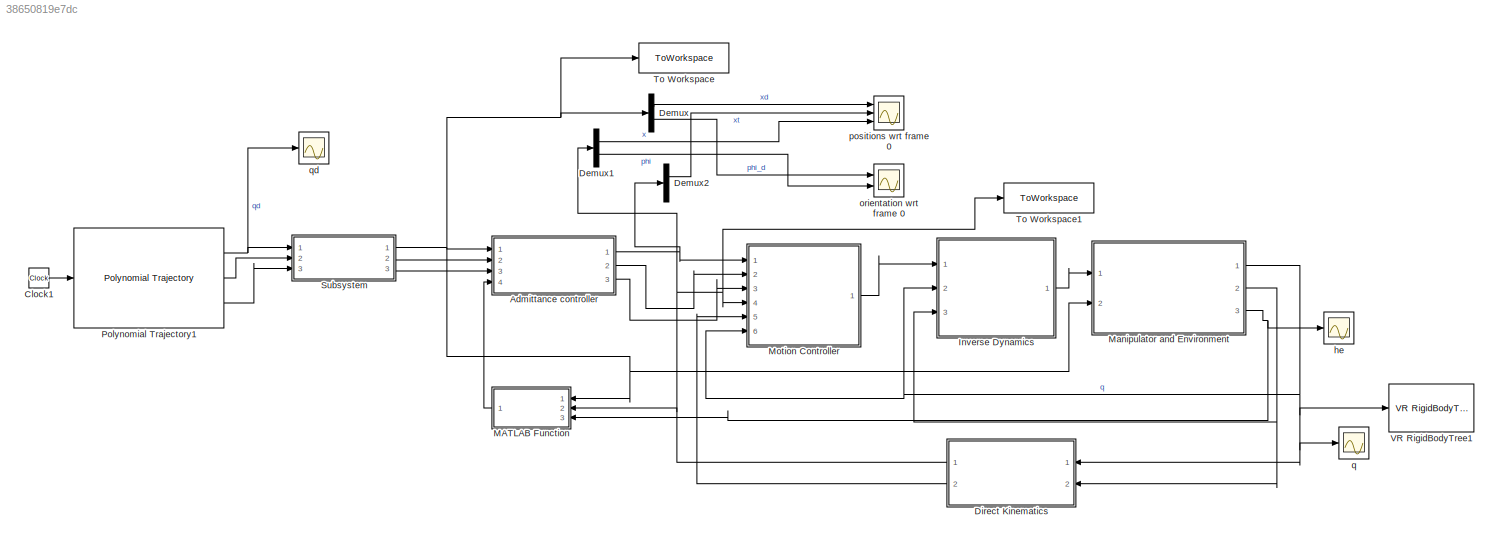
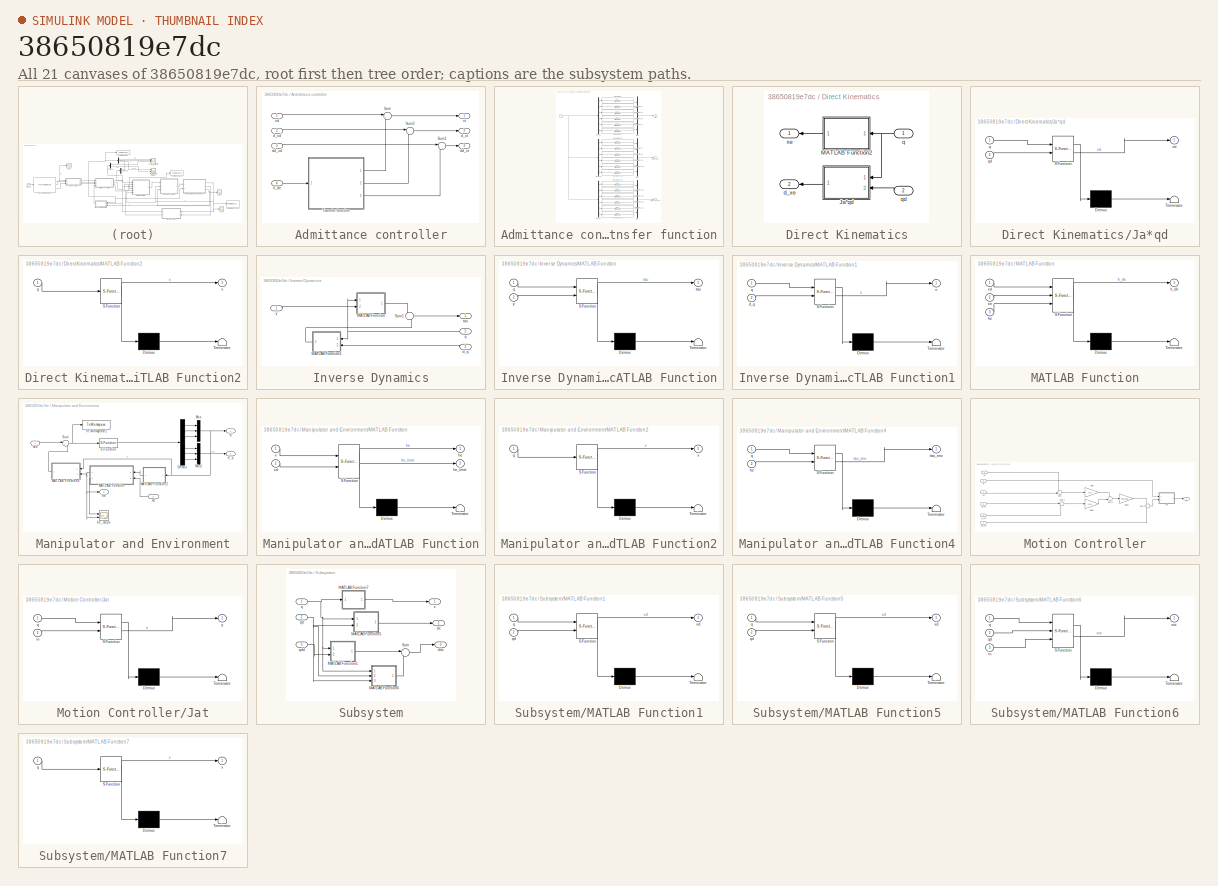
[diagram: thumbnail index - all 21 canvases of the model, root first then tree order]
MODEL slx_38650819e7dc
KIND model
CONFIG AbsTol = auto
CONFIG EnableMultiTasking = off
CONFIG FixedStep = 0.001
CONFIG MaxStep = auto
CONFIG MinStep = auto
CONFIG RelTol = 1e-3
CONFIG SampleTimeConstraint = Unconstrained
CONFIG SolverName = FixedStepAuto
CONFIG StartTime = 0.0
CONFIG StopTime = 5
BLOCK [SubSystem] Admittance controller
  Ports = [4, 3]
  RequestExecContextInheritance = off
BLOCK [Sum] Admittance controller/Sum
  Inputs = |+-
  Ports = [2, 1]
BLOCK [Sum] Admittance controller/Sum1
  Inputs = |+-
  Ports = [2, 1]
BLOCK [Sum] Admittance controller/Sum3
  Inputs = |+-
  Ports = [2, 1]
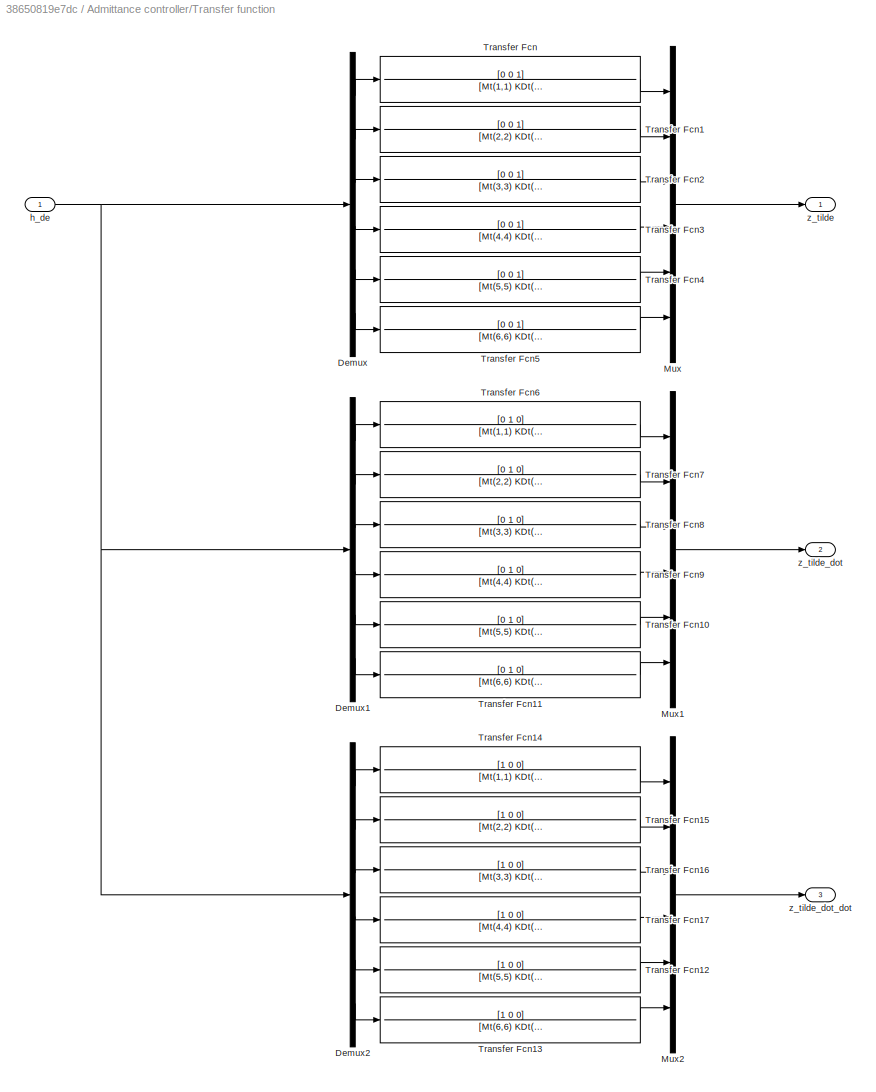
BLOCK [SubSystem] Admittance controller/Transfer function
  Ports = [1, 3]
  RequestExecContextInheritance = off
BLOCK [Demux] Admittance controller/Transfer function/Demux
  Outputs = 6
  Ports = [1, 6]
BLOCK [Demux] Admittance controller/Transfer function/Demux1
  Outputs = 6
  Ports = [1, 6]
BLOCK [Demux] Admittance controller/Transfer function/Demux2
  Outputs = 6
  Ports = [1, 6]
BLOCK [Mux] Admittance controller/Transfer function/Mux
  DisplayOption = bar
  Inputs = 6
  Ports = [6, 1]
BLOCK [Mux] Admittance controller/Transfer function/Mux1
  DisplayOption = bar
  Inputs = 6
  Ports = [6, 1]
BLOCK [Mux] Admittance controller/Transfer function/Mux2
  DisplayOption = bar
  Inputs = 6
  Ports = [6, 1]
BLOCK [TransferFcn] Admittance controller/Transfer function/Transfer Fcn
  Denominator = [Mt(1,1) KDt(1,1) KPt(1,1)]
  Numerator = [0 0 1]
BLOCK [TransferFcn] Admittance controller/Transfer function/Transfer Fcn1
  Denominator = [Mt(2,2) KDt(2,2) KPt(2,2)]
  Numerator = [0 0 1]
BLOCK [TransferFcn] Admittance controller/Transfer function/Transfer Fcn10
  Denominator = [Mt(5,5) KDt(5,5) KPt(5,5)]
  Numerator = [0 1 0]
BLOCK [TransferFcn] Admittance controller/Transfer function/Transfer Fcn11
  Denominator = [Mt(6,6) KDt(6,6) KPt(6,6)]
  Numerator = [0 1 0]
BLOCK [TransferFcn] Admittance controller/Transfer function/Transfer Fcn12
  Denominator = [Mt(5,5) KDt(5,5) KPt(5,5)]
  Numerator = [1 0 0]
BLOCK [TransferFcn] Admittance controller/Transfer function/Transfer Fcn13
  Denominator = [Mt(6,6) KDt(6,6) KPt(6,6)]
  Numerator = [1 0 0]
BLOCK [TransferFcn] Admittance controller/Transfer function/Transfer Fcn14
  Denominator = [Mt(1,1) KDt(1,1) KPt(1,1)]
  Numerator = [1 0 0]
BLOCK [TransferFcn] Admittance controller/Transfer function/Transfer Fcn15
  Denominator = [Mt(2,2) KDt(2,2) KPt(2,2)]
  Numerator = [1 0 0]
BLOCK [TransferFcn] Admittance controller/Transfer function/Transfer Fcn16
  Denominator = [Mt(3,3) KDt(3,3) KPt(3,3)]
  Numerator = [1 0 0]
BLOCK [TransferFcn] Admittance controller/Transfer function/Transfer Fcn17
  Denominator = [Mt(4,4) KDt(4,4) KPt(4,4)]
  Numerator = [1 0 0]
BLOCK [TransferFcn] Admittance controller/Transfer function/Transfer Fcn2
  Denominator = [Mt(3,3) KDt(3,3) KPt(3,3)]
  Numerator = [0 0 1]
BLOCK [TransferFcn] Admittance controller/Transfer function/Transfer Fcn3
  Denominator = [Mt(4,4) KDt(4,4) KPt(4,4)]
  Numerator = [0 0 1]
BLOCK [TransferFcn] Admittance controller/Transfer function/Transfer Fcn4
  Denominator = [Mt(5,5) KDt(5,5) KPt(5,5)]
  Numerator = [0 0 1]
BLOCK [TransferFcn] Admittance controller/Transfer function/Transfer Fcn5
  Denominator = [Mt(6,6) KDt(6,6) KPt(6,6)]
  Numerator = [0 0 1]
BLOCK [TransferFcn] Admittance controller/Transfer function/Transfer Fcn6
  Denominator = [Mt(1,1) KDt(1,1) KPt(1,1)]
  Numerator = [0 1 0]
BLOCK [TransferFcn] Admittance controller/Transfer function/Transfer Fcn7
  Denominator = [Mt(2,2) KDt(2,2) KPt(2,2)]
  Numerator = [0 1 0]
BLOCK [TransferFcn] Admittance controller/Transfer function/Transfer Fcn8
  Denominator = [Mt(3,3) KDt(3,3) KPt(3,3)]
  Numerator = [0 1 0]
BLOCK [TransferFcn] Admittance controller/Transfer function/Transfer Fcn9
  Denominator = [Mt(4,4) KDt(4,4) KPt(4,4)]
  Numerator = [0 1 0]
BLOCK [Inport] Admittance controller/Transfer function/h_de
BLOCK [Outport] Admittance controller/Transfer function/z_tilde
BLOCK [Outport] Admittance controller/Transfer function/z_tilde_dot
  Port = 2
BLOCK [Outport] Admittance controller/Transfer function/z_tilde_dot_dot
  Port = 3
BLOCK [Inport] Admittance controller/d_xd
  Port = 2
BLOCK [Outport] Admittance controller/d_xt
  Port = 2
BLOCK [Inport] Admittance controller/dd_xd
  Port = 3
BLOCK [Outport] Admittance controller/dd_xt
  Port = 3
BLOCK [Inport] Admittance controller/h_de
  Port = 4
BLOCK [Inport] Admittance controller/xd
BLOCK [Outport] Admittance controller/xt
BLOCK [Clock] Clock1
BLOCK [Demux] Demux
  Outputs = 2
  Ports = [1, 2]
BLOCK [Demux] Demux1
  Outputs = 2
  Ports = [1, 2]
BLOCK [Demux] Demux2
  Outputs = 2
  Ports = [1, 2]
BLOCK [SubSystem] Direct Kinematics
  Ports = [2, 2]
  RequestExecContextInheritance = off
BLOCK [SubSystem] Direct Kinematics/Ja*qd
  ErrorFcn = Stateflow.Translate.translate
  PermitHierarchicalResolution = ExplicitOnly
  Ports = [2, 1]
  RequestExecContextInheritance = off
  SFBlockType = MATLAB Function
  TreatAsAtomicUnit = on
BLOCK [Demux] Direct Kinematics/Ja*qd/ Demux 
  Outputs = 1
  Ports = [1, 1]
BLOCK [S-Function] Direct Kinematics/Ja*qd/ SFunction 
  EnableBusSupport = on
  FunctionName = sf_sfun
  Parameters = param
  PortCounts = [2 2]
  Ports = [2, 2]
  SFcnIsStateOwnerBlock = off
  SFunctionDeploymentMode = off
  Tag = Stateflow S-Function 12
BLOCK [Terminator] Direct Kinematics/Ja*qd/ Terminator 
BLOCK [Inport] Direct Kinematics/Ja*qd/q
BLOCK [Inport] Direct Kinematics/Ja*qd/qd
  Port = 2
BLOCK [Outport] Direct Kinematics/Ja*qd/xd
BLOCK [SubSystem] Direct Kinematics/MATLAB Function2
  ErrorFcn = Stateflow.Translate.translate
  PermitHierarchicalResolution = ExplicitOnly
  Ports = [1, 1]
  RequestExecContextInheritance = off
  SFBlockType = MATLAB Function
  TreatAsAtomicUnit = on
BLOCK [Demux] Direct Kinematics/MATLAB Function2/ Demux 
  Outputs = 1
  Ports = [1, 1]
BLOCK [S-Function] Direct Kinematics/MATLAB Function2/ SFunction 
  EnableBusSupport = on
  FunctionName = sf_sfun
  Parameters = param
  PortCounts = [1 2]
  Ports = [1, 2]
  SFcnIsStateOwnerBlock = off
  SFunctionDeploymentMode = off
  Tag = Stateflow S-Function 11
BLOCK [Terminator] Direct Kinematics/MATLAB Function2/ Terminator 
BLOCK [Inport] Direct Kinematics/MATLAB Function2/q
BLOCK [Outport] Direct Kinematics/MATLAB Function2/x
BLOCK [Outport] Direct Kinematics/d_xe
  Port = 2
BLOCK [Inport] Direct Kinematics/q
BLOCK [Inport] Direct Kinematics/qd
  Port = 2
BLOCK [Outport] Direct Kinematics/xe
BLOCK [SubSystem] Inverse Dynamics
  Ports = [3, 1]
  RequestExecContextInheritance = off
BLOCK [SubSystem] Inverse Dynamics/MATLAB Function
  ErrorFcn = Stateflow.Translate.translate
  PermitHierarchicalResolution = ExplicitOnly
  Ports = [2, 1]
  RequestExecContextInheritance = off
  SFBlockType = MATLAB Function
  TreatAsAtomicUnit = on
BLOCK [Demux] Inverse Dynamics/MATLAB Function/ Demux 
  Outputs = 1
  Ports = [1, 1]
BLOCK [S-Function] Inverse Dynamics/MATLAB Function/ SFunction 
  EnableBusSupport = on
  FunctionName = sf_sfun
  Parameters = param
  PortCounts = [2 2]
  Ports = [2, 2]
  SFcnIsStateOwnerBlock = off
  SFunctionDeploymentMode = off
  Tag = Stateflow S-Function 8
BLOCK [Terminator] Inverse Dynamics/MATLAB Function/ Terminator 
BLOCK [Inport] Inverse Dynamics/MATLAB Function/q
BLOCK [Outport] Inverse Dynamics/MATLAB Function/tau
BLOCK [Inport] Inverse Dynamics/MATLAB Function/y
  Port = 2
BLOCK [SubSystem] Inverse Dynamics/MATLAB Function1
  ErrorFcn = Stateflow.Translate.translate
  PermitHierarchicalResolution = ExplicitOnly
  Ports = [2, 1]
  RequestExecContextInheritance = off
  SFBlockType = MATLAB Function
  TreatAsAtomicUnit = on
BLOCK [Demux] Inverse Dynamics/MATLAB Function1/ Demux 
  Outputs = 1
  Ports = [1, 1]
BLOCK [S-Function] Inverse Dynamics/MATLAB Function1/ SFunction 
  EnableBusSupport = on
  FunctionName = sf_sfun
  Parameters = param
  PortCounts = [2 2]
  Ports = [2, 2]
  SFcnIsStateOwnerBlock = off
  SFunctionDeploymentMode = off
  Tag = Stateflow S-Function 15
BLOCK [Terminator] Inverse Dynamics/MATLAB Function1/ Terminator 
BLOCK [Inport] Inverse Dynamics/MATLAB Function1/d_q
  Port = 2
BLOCK [Outport] Inverse Dynamics/MATLAB Function1/n
BLOCK [Inport] Inverse Dynamics/MATLAB Function1/q
BLOCK [Sum] Inverse Dynamics/Sum1
  Ports = [2, 1]
BLOCK [Inport] Inverse Dynamics/d_q
  Port = 3
BLOCK [Inport] Inverse Dynamics/q
  Port = 2
BLOCK [Outport] Inverse Dynamics/tau
BLOCK [Inport] Inverse Dynamics/y
BLOCK [SubSystem] MATLAB Function
  ErrorFcn = Stateflow.Translate.translate
  PermitHierarchicalResolution = ExplicitOnly
  Ports = [3, 1]
  RequestExecContextInheritance = off
  SFBlockType = MATLAB Function
  TreatAsAtomicUnit = on
BLOCK [Demux] MATLAB Function/ Demux 
  Outputs = 1
  Ports = [1, 1]
BLOCK [S-Function] MATLAB Function/ SFunction 
  EnableBusSupport = on
  FunctionName = sf_sfun
  PortCounts = [3 2]
  Ports = [3, 2]
  SFcnIsStateOwnerBlock = off
  SFunctionDeploymentMode = off
  Tag = Stateflow S-Function 3
BLOCK [Terminator] MATLAB Function/ Terminator 
BLOCK [Outport] MATLAB Function/h_de
BLOCK [Inport] MATLAB Function/he
  Port = 3
BLOCK [Inport] MATLAB Function/xd
BLOCK [Inport] MATLAB Function/xe
  Port = 2
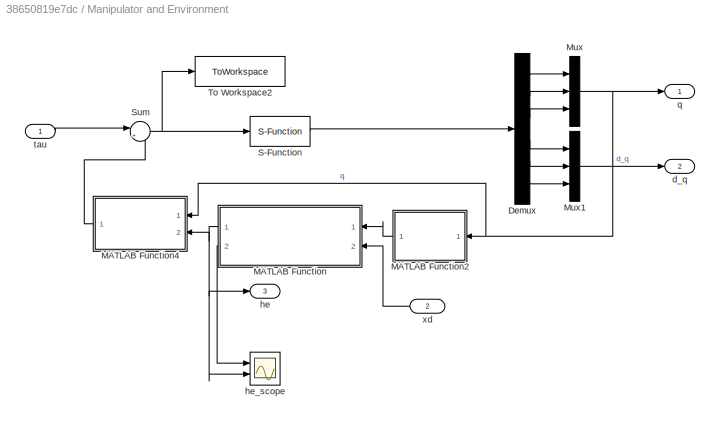
BLOCK [SubSystem] Manipulator and Environment
  Ports = [2, 3]
  RequestExecContextInheritance = off
BLOCK [Demux] Manipulator and Environment/Demux
  Outputs = 6
  Ports = [1, 6]
BLOCK [SubSystem] Manipulator and Environment/MATLAB Function
  ErrorFcn = Stateflow.Translate.translate
  PermitHierarchicalResolution = ExplicitOnly
  Ports = [2, 2]
  RequestExecContextInheritance = off
  SFBlockType = MATLAB Function
  TreatAsAtomicUnit = on
BLOCK [Demux] Manipulator and Environment/MATLAB Function/ Demux 
  Outputs = 1
  Ports = [1, 1]
BLOCK [S-Function] Manipulator and Environment/MATLAB Function/ SFunction 
  EnableBusSupport = on
  FunctionName = sf_sfun
  Parameters = param
  PortCounts = [2 3]
  Ports = [2, 3]
  SFcnIsStateOwnerBlock = off
  SFunctionDeploymentMode = off
  Tag = Stateflow S-Function 17
BLOCK [Terminator] Manipulator and Environment/MATLAB Function/ Terminator 
BLOCK [Outport] Manipulator and Environment/MATLAB Function/he
BLOCK [Outport] Manipulator and Environment/MATLAB Function/he_limit
  Port = 2
BLOCK [Inport] Manipulator and Environment/MATLAB Function/x
BLOCK [Inport] Manipulator and Environment/MATLAB Function/xd
  Port = 2
BLOCK [SubSystem] Manipulator and Environment/MATLAB Function2
  ErrorFcn = Stateflow.Translate.translate
  PermitHierarchicalResolution = ExplicitOnly
  Ports = [1, 1]
  RequestExecContextInheritance = off
  SFBlockType = MATLAB Function
  TreatAsAtomicUnit = on
BLOCK [Demux] Manipulator and Environment/MATLAB Function2/ Demux 
  Outputs = 1
  Ports = [1, 1]
BLOCK [S-Function] Manipulator and Environment/MATLAB Function2/ SFunction 
  EnableBusSupport = on
  FunctionName = sf_sfun
  Parameters = param
  PortCounts = [1 2]
  Ports = [1, 2]
  SFcnIsStateOwnerBlock = off
  SFunctionDeploymentMode = off
  Tag = Stateflow S-Function 18
BLOCK [Terminator] Manipulator and Environment/MATLAB Function2/ Terminator 
BLOCK [Inport] Manipulator and Environment/MATLAB Function2/q
BLOCK [Outport] Manipulator and Environment/MATLAB Function2/x
BLOCK [SubSystem] Manipulator and Environment/MATLAB Function4
  ErrorFcn = Stateflow.Translate.translate
  PermitHierarchicalResolution = ExplicitOnly
  Ports = [2, 1]
  RequestExecContextInheritance = off
  SFBlockType = MATLAB Function
  TreatAsAtomicUnit = on
BLOCK [Demux] Manipulator and Environment/MATLAB Function4/ Demux 
  Outputs = 1
  Ports = [1, 1]
BLOCK [S-Function] Manipulator and Environment/MATLAB Function4/ SFunction 
  EnableBusSupport = on
  FunctionName = sf_sfun
  Parameters = param
  PortCounts = [2 2]
  Ports = [2, 2]
  SFcnIsStateOwnerBlock = off
  SFunctionDeploymentMode = off
  Tag = Stateflow S-Function 5
BLOCK [Terminator] Manipulator and Environment/MATLAB Function4/ Terminator 
BLOCK [Inport] Manipulator and Environment/MATLAB Function4/he
  Port = 2
BLOCK [Inport] Manipulator and Environment/MATLAB Function4/q
BLOCK [Outport] Manipulator and Environment/MATLAB Function4/tau_env
BLOCK [Mux] Manipulator and Environment/Mux
  DisplayOption = bar
  Inputs = 3
  Ports = [3, 1]
BLOCK [Mux] Manipulator and Environment/Mux1
  DisplayOption = bar
  Inputs = 3
  Ports = [3, 1]
BLOCK [S-Function] Manipulator and Environment/S-Function
  EnableBusSupport = off
  FunctionName = Manipulator
  Parameters = param
  Ports = [1, 1]
  SFcnIsStateOwnerBlock = off
  SFunctionDeploymentMode = off
BLOCK [Sum] Manipulator and Environment/Sum
  Inputs = |+-
  Ports = [2, 1]
BLOCK [ToWorkspace] Manipulator and Environment/To Workspace2
  FixptAsFi = on
  MaxDataPoints = inf
  Ports = [1]
  SampleTime = -1
  SaveFormat = Timeseries
  VariableName = tau
BLOCK [Outport] Manipulator and Environment/d_q
  Port = 2
BLOCK [Outport] Manipulator and Environment/he
  Port = 3
BLOCK [Scope] Manipulator and Environment/he_scope
  Floating = off
  NumInputPorts = 2
  Ports = [2]
  ScopeSpecificationString = Simulink.scopes.TimeScopeBlockCfg('CurrentConfiguration', extmgr.ConfigurationSet(extmgr.Configuration('Core','General UI',true),extmgr.Configuration('Core','Source UI',true),extmgr.Configuration('Sources','WiredSimulink',true,'DataLoggingVariableName','ScopeData1'),extmgr.Configuration('Visuals','Time Domain',true,'SerializedDisplays',{struct('MinYLimReal','-0.10717','MaxYLimReal','0.96454','YLab...<+2007ch>
BLOCK [Outport] Manipulator and Environment/q
BLOCK [Inport] Manipulator and Environment/tau
BLOCK [Inport] Manipulator and Environment/xd
  NameLocation = top
  Port = 2
BLOCK [SubSystem] Motion Controller
  Ports = [6, 1]
  RequestExecContextInheritance = off
BLOCK [Gain] Motion Controller/Gain
  Gain = Kp
  Multiplication = Matrix(K*u)
BLOCK [Gain] Motion Controller/Gain1
  Gain = Kd
  Multiplication = Matrix(K*u)
BLOCK [Gain] Motion Controller/Gain2
  Gain = inv_Md
  Multiplication = Matrix(K*u)
BLOCK [SubSystem] Motion Controller/Jat
  ErrorFcn = Stateflow.Translate.translate
  PermitHierarchicalResolution = ExplicitOnly
  Ports = [2, 1]
  RequestExecContextInheritance = off
  SFBlockType = MATLAB Function
  TreatAsAtomicUnit = on
BLOCK [Demux] Motion Controller/Jat/ Demux 
  Outputs = 1
  Ports = [1, 1]
BLOCK [S-Function] Motion Controller/Jat/ SFunction 
  EnableBusSupport = on
  FunctionName = sf_sfun
  Parameters = param
  PortCounts = [2 2]
  Ports = [2, 2]
  SFcnIsStateOwnerBlock = off
  SFunctionDeploymentMode = off
  Tag = Stateflow S-Function 9
BLOCK [Terminator] Motion Controller/Jat/ Terminator 
BLOCK [Inport] Motion Controller/Jat/in
  Port = 2
BLOCK [Inport] Motion Controller/Jat/q
BLOCK [Outport] Motion Controller/Jat/y
BLOCK [Sum] Motion Controller/Sum
  Inputs = -+|
  Ports = [2, 1]
BLOCK [Sum] Motion Controller/Sum1
  Ports = [2, 1]
BLOCK [Sum] Motion Controller/Sum2
  Ports = [2, 1]
BLOCK [Sum] Motion Controller/Sum3
  Inputs = |+-
  Ports = [2, 1]
BLOCK [Inport] Motion Controller/d_xd
  Port = 2
BLOCK [Inport] Motion Controller/d_xe
  NameLocation = top
  Port = 5
BLOCK [Inport] Motion Controller/dd_xd
  Port = 3
BLOCK [Inport] Motion Controller/q
  NameLocation = top
  Port = 6
BLOCK [Inport] Motion Controller/xd
BLOCK [Inport] Motion Controller/xe
  NameLocation = top
  Port = 4
BLOCK [Outport] Motion Controller/y
BLOCK [Reference] Polynomial Trajectory1  REF=robotcorelib/Polynomial Trajectory
  Ports = [1, 3]
  SourceBlock = robotcorelib/Polynomial Trajectory
  SourceProductBaseCode = NV,RO,RR,UV
  SourceType = robotics.slcore.internal.block.PolyTrajSys
BLOCK [SubSystem] Subsystem
  Ports = [3, 3]
  RequestExecContextInheritance = off
BLOCK [SubSystem] Subsystem/MATLAB Function1
  ErrorFcn = Stateflow.Translate.translate
  PermitHierarchicalResolution = ExplicitOnly
  Ports = [2, 1]
  RequestExecContextInheritance = off
  SFBlockType = MATLAB Function
  TreatAsAtomicUnit = on
BLOCK [Demux] Subsystem/MATLAB Function1/ Demux 
  Outputs = 1
  Ports = [1, 1]
BLOCK [S-Function] Subsystem/MATLAB Function1/ SFunction 
  EnableBusSupport = on
  FunctionName = sf_sfun
  Parameters = param
  PortCounts = [2 2]
  Ports = [2, 2]
  SFcnIsStateOwnerBlock = off
  SFunctionDeploymentMode = off
  Tag = Stateflow S-Function 1
BLOCK [Terminator] Subsystem/MATLAB Function1/ Terminator 
BLOCK [Inport] Subsystem/MATLAB Function1/q
BLOCK [Inport] Subsystem/MATLAB Function1/qd
  Port = 2
BLOCK [Outport] Subsystem/MATLAB Function1/xd
BLOCK [SubSystem] Subsystem/MATLAB Function5
  ErrorFcn = Stateflow.Translate.translate
  PermitHierarchicalResolution = ExplicitOnly
  Ports = [2, 1]
  RequestExecContextInheritance = off
  SFBlockType = MATLAB Function
  TreatAsAtomicUnit = on
BLOCK [Demux] Subsystem/MATLAB Function5/ Demux 
  Outputs = 1
  Ports = [1, 1]
BLOCK [S-Function] Subsystem/MATLAB Function5/ SFunction 
  EnableBusSupport = on
  FunctionName = sf_sfun
  Parameters = param
  PortCounts = [2 2]
  Ports = [2, 2]
  SFcnIsStateOwnerBlock = off
  SFunctionDeploymentMode = off
  Tag = Stateflow S-Function 2
BLOCK [Terminator] Subsystem/MATLAB Function5/ Terminator 
BLOCK [Inport] Subsystem/MATLAB Function5/q
BLOCK [Inport] Subsystem/MATLAB Function5/qd
  Port = 2
BLOCK [Outport] Subsystem/MATLAB Function5/xd
BLOCK [SubSystem] Subsystem/MATLAB Function6
  ErrorFcn = Stateflow.Translate.translate
  PermitHierarchicalResolution = ExplicitOnly
  Ports = [3, 1]
  RequestExecContextInheritance = off
  SFBlockType = MATLAB Function
  TreatAsAtomicUnit = on
BLOCK [Demux] Subsystem/MATLAB Function6/ Demux 
  Outputs = 1
  Ports = [1, 1]
BLOCK [S-Function] Subsystem/MATLAB Function6/ SFunction 
  EnableBusSupport = on
  FunctionName = sf_sfun
  Parameters = param
  PortCounts = [3 2]
  Ports = [3, 2]
  SFcnIsStateOwnerBlock = off
  SFunctionDeploymentMode = off
  Tag = Stateflow S-Function 4
BLOCK [Terminator] Subsystem/MATLAB Function6/ Terminator 
BLOCK [Inport] Subsystem/MATLAB Function6/in
  Port = 3
BLOCK [Outport] Subsystem/MATLAB Function6/out
BLOCK [Inport] Subsystem/MATLAB Function6/q
BLOCK [Inport] Subsystem/MATLAB Function6/qd
  Port = 2
BLOCK [SubSystem] Subsystem/MATLAB Function7
  ErrorFcn = Stateflow.Translate.translate
  NameLocation = top
  PermitHierarchicalResolution = ExplicitOnly
  Ports = [1, 1]
  RequestExecContextInheritance = off
  SFBlockType = MATLAB Function
  TreatAsAtomicUnit = on
BLOCK [Demux] Subsystem/MATLAB Function7/ Demux 
  Outputs = 1
  Ports = [1, 1]
BLOCK [S-Function] Subsystem/MATLAB Function7/ SFunction 
  EnableBusSupport = on
  FunctionName = sf_sfun
  Parameters = param
  PortCounts = [1 2]
  Ports = [1, 2]
  SFcnIsStateOwnerBlock = off
  SFunctionDeploymentMode = off
  Tag = Stateflow S-Function 6
BLOCK [Terminator] Subsystem/MATLAB Function7/ Terminator 
BLOCK [Inport] Subsystem/MATLAB Function7/q
BLOCK [Outport] Subsystem/MATLAB Function7/x
BLOCK [Sum] Subsystem/Sum
  Inputs = |++
  Ports = [2, 1]
BLOCK [Outport] Subsystem/ddx
  Port = 3
BLOCK [Outport] Subsystem/dx
  Port = 2
BLOCK [Inport] Subsystem/q
BLOCK [Inport] Subsystem/qd
  Port = 2
BLOCK [Inport] Subsystem/qdd
  Port = 3
BLOCK [Outport] Subsystem/x
BLOCK [ToWorkspace] To Workspace
  FixptAsFi = on
  MaxDataPoints = inf
  Ports = [1]
  SampleTime = -1
  SaveFormat = Timeseries
  VariableName = xd
BLOCK [ToWorkspace] To Workspace1
  FixptAsFi = on
  MaxDataPoints = inf
  Ports = [1]
  SampleTime = -1
  SaveFormat = Timeseries
  VariableName = x
BLOCK [Reference] VR RigidBodyTree1  REF=vrlib/VR RigidBodyTree
  Commented = on
  Ports = [1]
  SourceBlock = vrlib/VR RigidBodyTree
  SourceProductBaseCode = SL
  SourceType = VR RigidBodyTree
BLOCK [Scope] he
  Floating = off
  NumInputPorts = 1
  Ports = [1]
  ScopeSpecificationString = Simulink.scopes.TimeScopeBlockCfg('CurrentConfiguration', extmgr.ConfigurationSet(extmgr.Configuration('Core','General UI',true),extmgr.Configuration('Core','Source UI',true),extmgr.Configuration('Sources','WiredSimulink',true,'DataLoggingVariableName','ScopeData2'),extmgr.Configuration('Visuals','Time Domain',true,'SerializedDisplays',{struct('MinYLimReal','-0.10717','MaxYLimReal','0.96454','YLab...<+1772ch>
BLOCK [Scope] orientation wrt frame 0
  Floating = off
  NumInputPorts = 2
  Ports = [2]
  ScopeSpecificationString = Simulink.scopes.TimeScopeBlockCfg('CurrentConfiguration', extmgr.ConfigurationSet(extmgr.Configuration('Core','General UI',true),extmgr.Configuration('Core','Source UI',true),extmgr.Configuration('Sources','WiredSimulink',true,'DataLoggingVariableName','ScopeData1'),extmgr.Configuration('Visuals','Time Domain',true,'SerializedDisplays',{struct('MinYLimReal','-3.53429','MaxYLimReal','0.3927','YLabe...<+1624ch>
BLOCK [Scope] positions wrt frame 0
  Floating = off
  NumInputPorts = 3
  Ports = [3]
  ScopeSpecificationString = Simulink.scopes.TimeScopeBlockCfg('CurrentConfiguration', extmgr.ConfigurationSet(extmgr.Configuration('Core','General UI',true),extmgr.Configuration('Core','Source UI',true),extmgr.Configuration('Sources','WiredSimulink',true),extmgr.Configuration('Visuals','Time Domain',true,'SerializedDisplays',{struct('MinYLimReal','-0.08007','MaxYLimReal','0.72061','YLabelReal','','MinYLimMag','0.00000','MaxY...<+1693ch>
BLOCK [Scope] q
  Floating = off
  NumInputPorts = 1
  Ports = [1]
  ScopeSpecificationString = Simulink.scopes.TimeScopeBlockCfg('CurrentConfiguration', extmgr.ConfigurationSet(extmgr.Configuration('Core','General UI',true),extmgr.Configuration('Core','Source UI',true),extmgr.Configuration('Sources','WiredSimulink',true,'DataLoggingVariableName','ScopeData4'),extmgr.Configuration('Visuals','Time Domain',true,'SerializedDisplays',{struct('MinYLimReal','-0.13748','MaxYLimReal','0.29206','YLab...<+1438ch>
BLOCK [Scope] qd
  Floating = off
  NumInputPorts = 1
  Ports = [1]
  ScopeSpecificationString = Simulink.scopes.TimeScopeBlockCfg('CurrentConfiguration', extmgr.ConfigurationSet(extmgr.Configuration('Core','General UI',true),extmgr.Configuration('Core','Source UI',true),extmgr.Configuration('Sources','WiredSimulink',true,'DataLoggingVariableName','ScopeData3'),extmgr.Configuration('Visuals','Time Domain',true,'SerializedDisplays',{struct('MinYLimReal','-0.125','MaxYLimReal','0.125','YLabelRe...<+1512ch>
LINE Admittance controller/Sum1:1 -> Admittance controller/dd_xt:1
LINE Admittance controller/Sum3:1 -> Admittance controller/d_xt:1
LINE Admittance controller/Sum:1 -> Admittance controller/xt:1
LINE Admittance controller/Transfer function/Demux1:1 -> Admittance controller/Transfer function/Transfer Fcn6:1
LINE Admittance controller/Transfer function/Demux1:2 -> Admittance controller/Transfer function/Transfer Fcn7:1
LINE Admittance controller/Transfer function/Demux1:3 -> Admittance controller/Transfer function/Transfer Fcn8:1
LINE Admittance controller/Transfer function/Demux1:4 -> Admittance controller/Transfer function/Transfer Fcn9:1
LINE Admittance controller/Transfer function/Demux1:5 -> Admittance controller/Transfer function/Transfer Fcn10:1
LINE Admittance controller/Transfer function/Demux1:6 -> Admittance controller/Transfer function/Transfer Fcn11:1
LINE Admittance controller/Transfer function/Demux2:1 -> Admittance controller/Transfer function/Transfer Fcn14:1
LINE Admittance controller/Transfer function/Demux2:2 -> Admittance controller/Transfer function/Transfer Fcn15:1
LINE Admittance controller/Transfer function/Demux2:3 -> Admittance controller/Transfer function/Transfer Fcn16:1
LINE Admittance controller/Transfer function/Demux2:4 -> Admittance controller/Transfer function/Transfer Fcn17:1
LINE Admittance controller/Transfer function/Demux2:5 -> Admittance controller/Transfer function/Transfer Fcn12:1
LINE Admittance controller/Transfer function/Demux2:6 -> Admittance controller/Transfer function/Transfer Fcn13:1
LINE Admittance controller/Transfer function/Demux:1 -> Admittance controller/Transfer function/Transfer Fcn:1
LINE Admittance controller/Transfer function/Demux:2 -> Admittance controller/Transfer function/Transfer Fcn1:1
LINE Admittance controller/Transfer function/Demux:3 -> Admittance controller/Transfer function/Transfer Fcn2:1
LINE Admittance controller/Transfer function/Demux:4 -> Admittance controller/Transfer function/Transfer Fcn3:1
LINE Admittance controller/Transfer function/Demux:5 -> Admittance controller/Transfer function/Transfer Fcn4:1
LINE Admittance controller/Transfer function/Demux:6 -> Admittance controller/Transfer function/Transfer Fcn5:1
LINE Admittance controller/Transfer function/Mux1:1 -> Admittance controller/Transfer function/z_tilde_dot:1
LINE Admittance controller/Transfer function/Mux2:1 -> Admittance controller/Transfer function/z_tilde_dot_dot:1
LINE Admittance controller/Transfer function/Mux:1 -> Admittance controller/Transfer function/z_tilde:1
LINE Admittance controller/Transfer function/Transfer Fcn10:1 -> Admittance controller/Transfer function/Mux1:5
LINE Admittance controller/Transfer function/Transfer Fcn11:1 -> Admittance controller/Transfer function/Mux1:6
LINE Admittance controller/Transfer function/Transfer Fcn12:1 -> Admittance controller/Transfer function/Mux2:5
LINE Admittance controller/Transfer function/Transfer Fcn13:1 -> Admittance controller/Transfer function/Mux2:6
LINE Admittance controller/Transfer function/Transfer Fcn14:1 -> Admittance controller/Transfer function/Mux2:1
LINE Admittance controller/Transfer function/Transfer Fcn15:1 -> Admittance controller/Transfer function/Mux2:2
LINE Admittance controller/Transfer function/Transfer Fcn16:1 -> Admittance controller/Transfer function/Mux2:3
LINE Admittance controller/Transfer function/Transfer Fcn17:1 -> Admittance controller/Transfer function/Mux2:4
LINE Admittance controller/Transfer function/Transfer Fcn1:1 -> Admittance controller/Transfer function/Mux:2
LINE Admittance controller/Transfer function/Transfer Fcn2:1 -> Admittance controller/Transfer function/Mux:3
LINE Admittance controller/Transfer function/Transfer Fcn3:1 -> Admittance controller/Transfer function/Mux:4
LINE Admittance controller/Transfer function/Transfer Fcn4:1 -> Admittance controller/Transfer function/Mux:5
LINE Admittance controller/Transfer function/Transfer Fcn5:1 -> Admittance controller/Transfer function/Mux:6
LINE Admittance controller/Transfer function/Transfer Fcn6:1 -> Admittance controller/Transfer function/Mux1:1
LINE Admittance controller/Transfer function/Transfer Fcn7:1 -> Admittance controller/Transfer function/Mux1:2
LINE Admittance controller/Transfer function/Transfer Fcn8:1 -> Admittance controller/Transfer function/Mux1:3
LINE Admittance controller/Transfer function/Transfer Fcn9:1 -> Admittance controller/Transfer function/Mux1:4
LINE Admittance controller/Transfer function/Transfer Fcn:1 -> Admittance controller/Transfer function/Mux:1
NET Admittance controller/Transfer function/h_de:1 -> Admittance controller/Transfer function/Demux1:1, Admittance controller/Transfer function/Demux2:1, Admittance controller/Transfer function/Demux:1
LINE Admittance controller/Transfer function:1 -> Admittance controller/Sum:2
LINE Admittance controller/Transfer function:2 -> Admittance controller/Sum3:2
LINE Admittance controller/Transfer function:3 -> Admittance controller/Sum1:2
LINE Admittance controller/d_xd:1 -> Admittance controller/Sum3:1
LINE Admittance controller/dd_xd:1 -> Admittance controller/Sum1:1
LINE Admittance controller/h_de:1 -> Admittance controller/Transfer function:1
LINE Admittance controller/xd:1 -> Admittance controller/Sum:1
NET Admittance controller:1 -> Demux2:1, Motion Controller:1
LINE Admittance controller:2 -> Motion Controller:2
LINE Admittance controller:3 -> Motion Controller:3
LINE Clock1:1 -> Polynomial Trajectory1:1
LINE Demux1:1 -> positions wrt frame 0:3
LINE Demux1:2 -> orientation wrt frame 0:2
LINE Demux2:1 -> positions wrt frame 0:2
LINE Demux:1 -> positions wrt frame 0:1
LINE Demux:2 -> orientation wrt frame 0:1
LINE Direct Kinematics/Ja*qd:1 -> Direct Kinematics/d_xe:1
LINE Direct Kinematics/MATLAB Function2:1 -> Direct Kinematics/xe:1
NET Direct Kinematics/q:1 -> Direct Kinematics/Ja*qd:1, Direct Kinematics/MATLAB Function2:1
LINE Direct Kinematics/qd:1 -> Direct Kinematics/Ja*qd:2
NET Direct Kinematics:1 -> Demux1:1, MATLAB Function:2, Motion Controller:4, To Workspace1:1
LINE Direct Kinematics:2 -> Motion Controller:5
LINE Inverse Dynamics/MATLAB Function1:1 -> Inverse Dynamics/Sum1:2
LINE Inverse Dynamics/MATLAB Function:1 -> Inverse Dynamics/Sum1:1
LINE Inverse Dynamics/Sum1:1 -> Inverse Dynamics/tau:1
LINE Inverse Dynamics/d_q:1 -> Inverse Dynamics/MATLAB Function1:2
NET Inverse Dynamics/q:1 -> Inverse Dynamics/MATLAB Function1:1, Inverse Dynamics/MATLAB Function:1
LINE Inverse Dynamics/y:1 -> Inverse Dynamics/MATLAB Function:2
LINE Inverse Dynamics:1 -> Manipulator and Environment:1
LINE MATLAB Function:1 -> Admittance controller:4
LINE Manipulator and Environment/Demux:1 -> Manipulator and Environment/Mux:1
LINE Manipulator and Environment/Demux:2 -> Manipulator and Environment/Mux:2
LINE Manipulator and Environment/Demux:3 -> Manipulator and Environment/Mux:3
LINE Manipulator and Environment/Demux:4 -> Manipulator and Environment/Mux1:1
LINE Manipulator and Environment/Demux:5 -> Manipulator and Environment/Mux1:2
LINE Manipulator and Environment/Demux:6 -> Manipulator and Environment/Mux1:3
LINE Manipulator and Environment/MATLAB Function2:1 -> Manipulator and Environment/MATLAB Function:1
LINE Manipulator and Environment/MATLAB Function4:1 -> Manipulator and Environment/Sum:2
NET Manipulator and Environment/MATLAB Function:1 -> Manipulator and Environment/MATLAB Function4:2, Manipulator and Environment/he:1, Manipulator and Environment/he_scope:2
LINE Manipulator and Environment/MATLAB Function:2 -> Manipulator and Environment/he_scope:1
LINE Manipulator and Environment/Mux1:1 -> Manipulator and Environment/d_q:1
NET Manipulator and Environment/Mux:1 -> Manipulator and Environment/MATLAB Function2:1, Manipulator and Environment/MATLAB Function4:1, Manipulator and Environment/q:1
LINE Manipulator and Environment/S-Function:1 -> Manipulator and Environment/Demux:1
NET Manipulator and Environment/Sum:1 -> Manipulator and Environment/S-Function:1, Manipulator and Environment/To Workspace2:1
LINE Manipulator and Environment/tau:1 -> Manipulator and Environment/Sum:1
LINE Manipulator and Environment/xd:1 -> Manipulator and Environment/MATLAB Function:2
NET Manipulator and Environment:1 -> Direct Kinematics:1, Inverse Dynamics:2, Motion Controller:6, VR RigidBodyTree1:1, q:1
NET Manipulator and Environment:2 -> Direct Kinematics:2, Inverse Dynamics:3
NET Manipulator and Environment:3 -> MATLAB Function:3, he:1
LINE Motion Controller/Gain1:1 -> Motion Controller/Sum2:2
LINE Motion Controller/Gain2:1 -> Motion Controller/Sum1:1
LINE Motion Controller/Gain:1 -> Motion Controller/Sum2:1
LINE Motion Controller/Jat:1 -> Motion Controller/y:1
LINE Motion Controller/Sum1:1 -> Motion Controller/Jat:2
LINE Motion Controller/Sum2:1 -> Motion Controller/Gain2:1
LINE Motion Controller/Sum3:1 -> Motion Controller/Gain1:1
LINE Motion Controller/Sum:1 -> Motion Controller/Gain:1
LINE Motion Controller/d_xd:1 -> Motion Controller/Sum3:1
LINE Motion Controller/d_xe:1 -> Motion Controller/Sum3:2
LINE Motion Controller/dd_xd:1 -> Motion Controller/Sum1:2
LINE Motion Controller/q:1 -> Motion Controller/Jat:1
LINE Motion Controller/xd:1 -> Motion Controller/Sum:2
LINE Motion Controller/xe:1 -> Motion Controller/Sum:1
LINE Motion Controller:1 -> Inverse Dynamics:1
NET Polynomial Trajectory1:1 -> Subsystem:1, qd:1
LINE Polynomial Trajectory1:2 -> Subsystem:2
LINE Polynomial Trajectory1:3 -> Subsystem:3
LINE Subsystem/MATLAB Function1:1 -> Subsystem/Sum:1
LINE Subsystem/MATLAB Function5:1 -> Subsystem/dx:1
LINE Subsystem/MATLAB Function6:1 -> Subsystem/Sum:2
LINE Subsystem/MATLAB Function7:1 -> Subsystem/x:1
LINE Subsystem/Sum:1 -> Subsystem/ddx:1
NET Subsystem/q:1 -> Subsystem/MATLAB Function1:1, Subsystem/MATLAB Function5:1, Subsystem/MATLAB Function6:1, Subsystem/MATLAB Function7:1
NET Subsystem/qd:1 -> Subsystem/MATLAB Function5:2, Subsystem/MATLAB Function6:2, Subsystem/MATLAB Function6:3
LINE Subsystem/qdd:1 -> Subsystem/MATLAB Function1:2
NET Subsystem:1 -> Admittance controller:1, Demux:1, MATLAB Function:1, Manipulator and Environment:2, To Workspace:1
LINE Subsystem:2 -> Admittance controller:2
LINE Subsystem:3 -> Admittance controller:3
note: NET lines group one-source signal fan-out (src -> all destinations, sorted); 1:1 wires keep LINE
CHART Inverse Dynamics/MATLAB Function1 states=1 transitions=1
  STATE_LABEL 'eML_blk_kernel()'
  STATE_LABEL 'SCRIPT:\nfunction n = n(q,d_q,param)\n    % Compute C and G used in the model of n(q,d_q)\n    C = double(C_Lagrangian(q, d_q, param));\n    G = double(G_Lagrangian(q, param));\n    Fsv = param.Fsv;\n\n    n = C * d_q + G + Fsv * d_q;\nend\n'
CHART Manipulator and Environment/MATLAB Function states=1 transitions=1
  STATE_LABEL 'eML_blk_kernel()'
  STATE_LABEL 'SCRIPT:\nfunction [he, he_limit] = environment(x, xd, param)\n    if x(param.axis) >= param.wall \n\n        % set up the rest position frame\n        xr = zeros(6,1);\n        xr(param.axis) = param.wall;\n\n        xe = zeros(6,1);\n        xe(param.axis) = x(param.axis);\n\n        he = param.K * (xe - xr);\n        dx_rd = zeros(6,1);\n        dx_rd(param.axis) = xd(param.axis) - xr(param.axis);\n        % ...<+156ch>'
CHART Subsystem/MATLAB Function1 states=1 transitions=1
  STATE_LABEL 'eML_blk_kernel()'
  STATE_LABEL 'SCRIPT:\nfunction xd = Ja(q, qd, param)\n    Ja = AnalyticalJacobian(q,param);\n    xd = Ja * qd;\nend'
CHART Manipulator and Environment/MATLAB Function2 states=1 transitions=1
  STATE_LABEL 'eML_blk_kernel()'
  STATE_LABEL 'SCRIPT:\nfunction x = Kin(q,param)\n    x = Kinematics(q,param);\nend'
CHART Subsystem/MATLAB Function5 states=1 transitions=1
  STATE_LABEL 'eML_blk_kernel()'
  STATE_LABEL 'SCRIPT:\nfunction xd = Ja(q, qd, param)\n    Ja = AnalyticalJacobian(q,param);\n    xd = Ja * qd;\nend'
CHART MATLAB Function states=1 transitions=1
  STATE_LABEL 'eML_blk_kernel()'
  STATE_LABEL "SCRIPT:\nfunction h_de = to_h_de(xd, xe, he)\n    h_de = zeros(6,1);\n    Rd_e = eul2rotm(((xd(4:6) - xe(4:6)))', 'ZYZ');\n    \n    h_de(1:3) = Rd_e * he(1:3);\n    h_de(4:6) = Rd_e * he(4:6);\nend\n"
CHART Subsystem/MATLAB Function6 states=1 transitions=1
  STATE_LABEL 'eML_blk_kernel()'
  STATE_LABEL 'SCRIPT:\nfunction out = dot_Ja(q, qd, in, param)\n    d_Ja = AnalyticalJacobian_dot(q,qd,param);\n    out = d_Ja * in;\nend'
CHART Manipulator and Environment/MATLAB Function4 states=1 transitions=1
  STATE_LABEL 'eML_blk_kernel()'
  STATE_LABEL "SCRIPT:\nfunction tau_env = JT(q, he, param)\n    tau_env = Jacobian(q, param)' * he;\nend"
CHART Subsystem/MATLAB Function7 states=1 transitions=1
  STATE_LABEL 'eML_blk_kernel()'
  STATE_LABEL 'SCRIPT:\nfunction x = Kin(q,param)\n    x = Kinematics(q,param);\nend'
CHART Inverse Dynamics/MATLAB Function states=1 transitions=1
  STATE_LABEL 'eML_blk_kernel()'
  STATE_LABEL 'SCRIPT:\nfunction tau = B(q,y,param)\n    B_matrix = B_Lagrangian(q, param);\n    tau =  B_matrix * y;\nend\n'
CHART Motion Controller/Jat states=1 transitions=1
  STATE_LABEL 'eML_blk_kernel()'
  STATE_LABEL 'SCRIPT:\nfunction y = invJa(q, in, param)\n    Ja = AnalyticalJacobian(q,param);\n    y = pinv(Ja) * in;\nend\n'
CHART Direct Kinematics/MATLAB Function2 states=1 transitions=1
  STATE_LABEL 'eML_blk_kernel()'
  STATE_LABEL 'SCRIPT:\nfunction x = Kin(q,param)\n    x = Kinematics(q,param);\nend'
CHART Direct Kinematics/Ja*qd states=1 transitions=1
  STATE_LABEL 'eML_blk_kernel()'
  STATE_LABEL 'SCRIPT:\nfunction xd = Ja(q, qd, param)\n    Ja = AnalyticalJacobian(q,param);\n    xd = Ja * qd;\nend'
CHART  states=0 transitions=0
CHART  states=0 transitions=0
CHART  states=0 transitions=0
CHART  states=0 transitions=0
CHART  states=0 transitions=0
CHART  states=0 transitions=0
CHART  states=0 transitions=0
CHART  states=0 transitions=0
CHART  states=0 transitions=0
CHART  states=0 transitions=0
CHART  states=0 transitions=0
CHART  states=0 transitions=0
CHART  states=0 transitions=0
